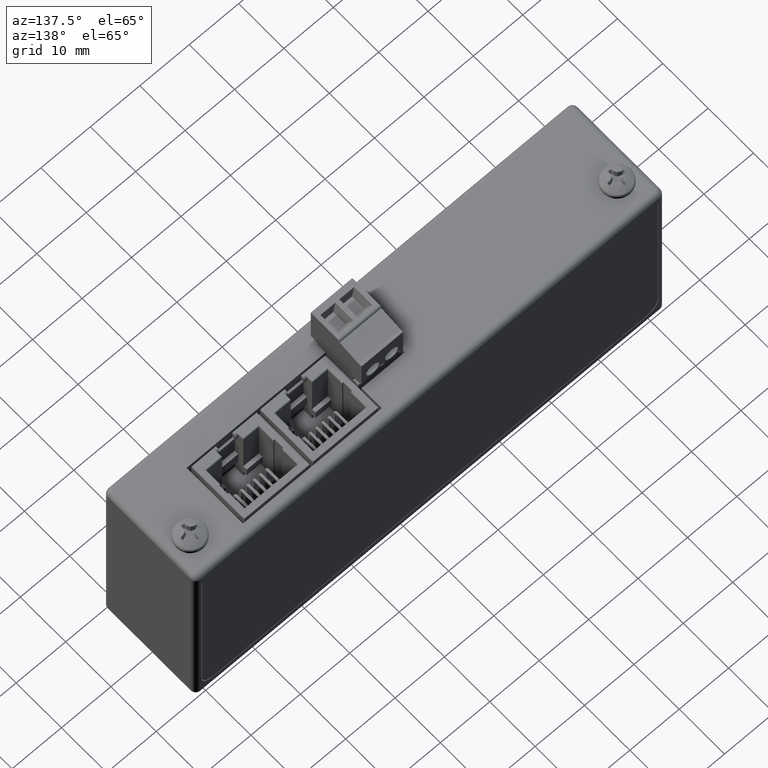
[diagram: clean part render]
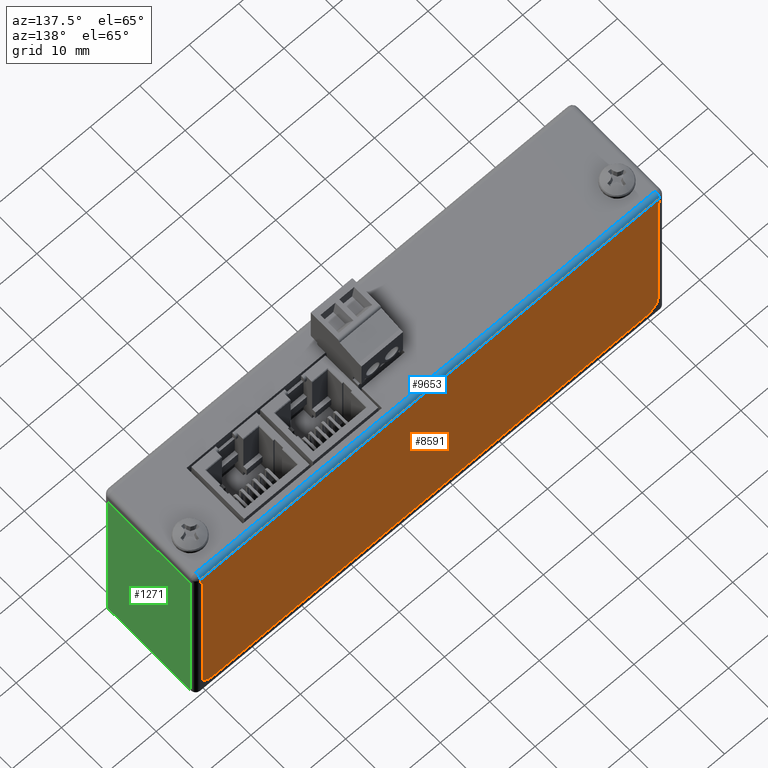
[diagram: same view with three faces highlighted in distinct colors, each labeled with its STEP entity id]
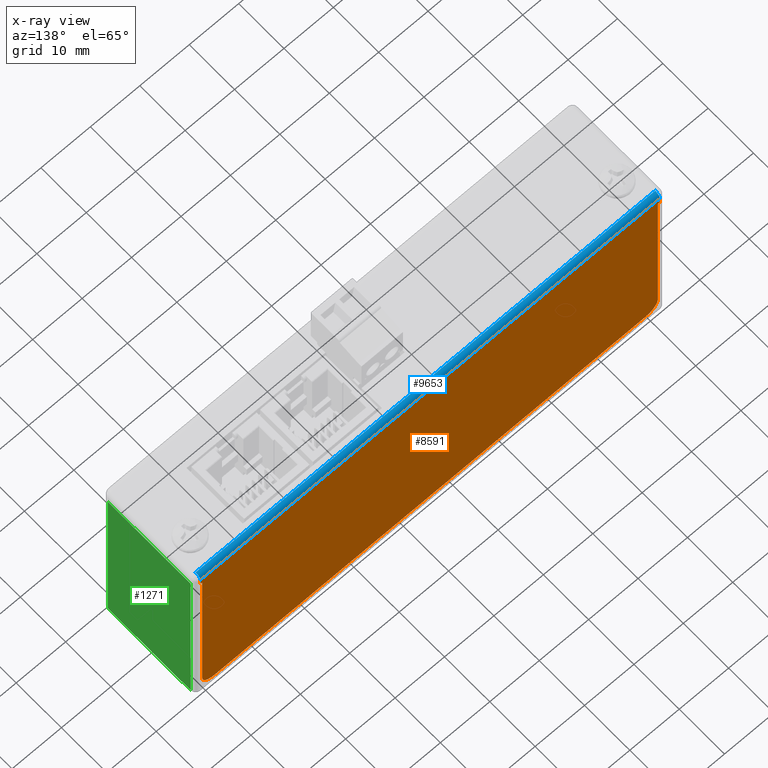
[diagram: x-ray of the same camera — body ghosted, the three highlighted faces saturated]
A machine part, auxiliary view with three faces highlighted in distinct colors.
The next image is the same camera in x-ray (body ghosted, the three faces saturated) — at least one of them is partly hidden behind the body in this view.
Their STEP definitions:

[orange] entity #8591 — the highlighted planar face has unit normal (0, -1, 0).
#43 = LINE ( 'NONE', #8129, #19098 ) ;
#1258 = VERTEX_POINT ( 'NONE', #20660 ) ;
#2328 = VERTEX_POINT ( 'NONE', #20903 ) ;
#2520 = CARTESIAN_POINT ( 'NONE',  ( 93.98399999999999466, 20.32000000000000384, 1.524000000001558330 ) ) ;
#2619 = VECTOR ( 'NONE', #11044, 1000.000000000000000 ) ;
#2620 = CARTESIAN_POINT ( 'NONE',  ( 91.06099999999999284, 20.32000000000000028, -36.19500000000000028 ) ) ;
#2829 = CARTESIAN_POINT ( 'NONE',  ( 93.60099999999998488, 20.32000000000000028, -33.65499999999999403 ) ) ;
#2969 = CARTESIAN_POINT ( 'NONE',  ( 0.000000000000000000, 20.32000000000000028, 0.000000000000000000 ) ) ;
#3634 = VERTEX_POINT ( 'NONE', #13973 ) ;
#4052 = AXIS2_PLACEMENT_3D ( 'NONE', #13132, #15212, #22915 ) ;
#4068 = LINE ( 'NONE', #15681, #7670 ) ;
#4652 = EDGE_CURVE ( 'NONE', #3634, #2328, #10802, .T. ) ;
#4802 = DIRECTION ( 'NONE',  ( 1.000000000000000000, -0.000000000000000000, 0.000000000000000000 ) ) ;
#5274 = EDGE_CURVE ( 'NONE', #7384, #23458, #10102, .T. ) ;
#5690 = CARTESIAN_POINT ( 'NONE',  ( 0.000000000000000000, 20.32000000000000028, 2.540000000000000036 ) ) ;
#5836 = VECTOR ( 'NONE', #4802, 1000.000000000000000 ) ;
#6002 = DIRECTION ( 'NONE',  ( 0.000000000000000000, -1.000000000000000000, 0.000000000000000000 ) ) ;
#6686 = EDGE_CURVE ( 'NONE', #23787, #7384, #14664, .T. ) ;
#6843 = CARTESIAN_POINT ( 'NONE',  ( 0.000000000000000000, 20.32000000000000028, 0.000000000000000000 ) ) ;
#7112 = CARTESIAN_POINT ( 'NONE',  ( 1.016000000000000014, 20.32000000000000028, 1.524000000000000687 ) ) ;
#7298 = CARTESIAN_POINT ( 'NONE',  ( 93.60099999999998488, 20.32000000000000028, 2.540000000000000036 ) ) ;
#7375 = CIRCLE ( 'NONE', #23609, 2.540000000000000480 ) ;
#7384 = VERTEX_POINT ( 'NONE', #7112 ) ;
#7490 = ORIENTED_EDGE ( 'NONE', *, *, #5274, .F. ) ;
#7670 = VECTOR ( 'NONE', #21543, 1000.000000000000000 ) ;
#7731 = DIRECTION ( 'NONE',  ( 0.000000000000000000, -0.000000000000000000, -1.000000000000000000 ) ) ;
#8008 = DIRECTION ( 'NONE',  ( 0.000000000000000000, -0.000000000000000000, -1.000000000000000000 ) ) ;
#8129 = CARTESIAN_POINT ( 'NONE',  ( 1.399000000000011346, 20.32000000000000028, 2.540000000000000036 ) ) ;
#8296 = EDGE_CURVE ( 'NONE', #21410, #3634, #9507, .T. ) ;
#8389 = ORIENTED_EDGE ( 'NONE', *, *, #15143, .F. ) ;
#8418 = CARTESIAN_POINT ( 'NONE',  ( 0.000000000000000000, 20.32000000000000028, 1.524000000000000243 ) ) ;
#8591 = ADVANCED_FACE ( 'NONE', ( #19005 ), #23557, .F. ) ;
#8935 = ORIENTED_EDGE ( 'NONE', *, *, #4652, .F. ) ;
#9269 = DIRECTION ( 'NONE',  ( -0.000000000000000000, 0.000000000000000000, 1.000000000000000000 ) ) ;
#9405 = EDGE_CURVE ( 'NONE', #23458, #14036, #24709, .T. ) ;
#9507 = LINE ( 'NONE', #7298, #9645 ) ;
#9645 = VECTOR ( 'NONE', #9269, 1000.000000000000000 ) ;
#9663 = CARTESIAN_POINT ( 'NONE',  ( 3.939000000000012047, 20.32000000000000028, -33.65499999999999403 ) ) ;
#9680 = ORIENTED_EDGE ( 'NONE', *, *, #13725, .F. ) ;
#10102 = LINE ( 'NONE', #19859, #17104 ) ;
#10402 = CARTESIAN_POINT ( 'NONE',  ( 1.399000000000011346, 20.32000000000000028, 0.000000000000000000 ) ) ;
#10802 = LINE ( 'NONE', #2969, #5836 ) ;
#11044 = DIRECTION ( 'NONE',  ( 1.000000000000000000, 0.000000000000000000, 0.000000000000000000 ) ) ;
#13035 = CARTESIAN_POINT ( 'NONE',  ( 1.399000000000011346, 20.32000000000000028, -33.65499999999999403 ) ) ;
#13132 = CARTESIAN_POINT ( 'NONE',  ( 91.06099999999999284, 20.32000000000000028, -33.65499999999999403 ) ) ;
#13263 = DIRECTION ( 'NONE',  ( 0.000000000000000000, -1.000000000000000000, 0.000000000000000000 ) ) ;
#13353 = VERTEX_POINT ( 'NONE', #13035 ) ;
#13725 = EDGE_CURVE ( 'NONE', #24219, #21410, #21124, .T. ) ;
#13861 = VECTOR ( 'NONE', #14782, 1000.000000000000000 ) ;
#13973 = CARTESIAN_POINT ( 'NONE',  ( 93.60099999999998488, 20.32000000000000028, 0.000000000000000000 ) ) ;
#14036 = VERTEX_POINT ( 'NONE', #10402 ) ;
#14664 = LINE ( 'NONE', #8418, #15015 ) ;
#14782 = DIRECTION ( 'NONE',  ( 1.000000000000000000, -0.000000000000000000, 0.000000000000000000 ) ) ;
#15015 = VECTOR ( 'NONE', #16746, 1000.000000000000000 ) ;
#15143 = EDGE_CURVE ( 'NONE', #14036, #13353, #43, .T. ) ;
#15212 = DIRECTION ( 'NONE',  ( -0.000000000000000000, -1.000000000000000000, -0.000000000000000000 ) ) ;
#15681 = CARTESIAN_POINT ( 'NONE',  ( 93.98399999999999466, 20.32000000000000028, 2.540000000000000036 ) ) ;
#15794 = ORIENTED_EDGE ( 'NONE', *, *, #6686, .F. ) ;
#15910 = AXIS2_PLACEMENT_3D ( 'NONE', #5690, #13263, #21220 ) ;
#16588 = ORIENTED_EDGE ( 'NONE', *, *, #21527, .F. ) ;
#16746 = DIRECTION ( 'NONE',  ( -1.000000000000000000, -0.000000000000000000, -0.000000000000000000 ) ) ;
#17104 = VECTOR ( 'NONE', #8008, 1000.000000000000000 ) ;
#18134 = DIRECTION ( 'NONE',  ( 0.000000000000000000, 0.000000000000000000, -1.000000000000000000 ) ) ;
#19005 = FACE_OUTER_BOUND ( 'NONE', #24065, .T. ) ;
#19098 = VECTOR ( 'NONE', #7731, 1000.000000000000000 ) ;
#19859 = CARTESIAN_POINT ( 'NONE',  ( 1.016000000000000014, 20.32000000000000028, 2.540000000000000036 ) ) ;
#20660 = CARTESIAN_POINT ( 'NONE',  ( 3.939000000000012047, 20.32000000000000028, -36.19500000000000028 ) ) ;
#20797 = ORIENTED_EDGE ( 'NONE', *, *, #8296, .F. ) ;
#20903 = CARTESIAN_POINT ( 'NONE',  ( 93.98399999999999466, 20.32000000000000028, 0.000000000000000000 ) ) ;
#21096 = ORIENTED_EDGE ( 'NONE', *, *, #25291, .F. ) ;
#21124 = CIRCLE ( 'NONE', #4052, 2.540000000000000480 ) ;
#21220 = DIRECTION ( 'NONE',  ( 0.000000000000000000, -0.000000000000000000, -1.000000000000000000 ) ) ;
#21410 = VERTEX_POINT ( 'NONE', #2829 ) ;
#21527 = EDGE_CURVE ( 'NONE', #1258, #24219, #25116, .T. ) ;
#21543 = DIRECTION ( 'NONE',  ( -0.000000000000000000, 0.000000000000000000, 1.000000000000000000 ) ) ;
#22221 = CARTESIAN_POINT ( 'NONE',  ( 1.016000000000000014, 20.32000000000000028, 0.000000000000000000 ) ) ;
#22447 = ORIENTED_EDGE ( 'NONE', *, *, #9405, .F. ) ;
#22915 = DIRECTION ( 'NONE',  ( 0.000000000000000000, 0.000000000000000000, 1.000000000000000000 ) ) ;
#23152 = CARTESIAN_POINT ( 'NONE',  ( 0.000000000000000000, 20.32000000000000028, -36.19500000000000028 ) ) ;
#23223 = EDGE_CURVE ( 'NONE', #2328, #23787, #4068, .T. ) ;
#23225 = ORIENTED_EDGE ( 'NONE', *, *, #23223, .F. ) ;
#23458 = VERTEX_POINT ( 'NONE', #22221 ) ;
#23557 = PLANE ( 'NONE',  #15910 ) ;
#23609 = AXIS2_PLACEMENT_3D ( 'NONE', #9663, #6002, #18134 ) ;
#23787 = VERTEX_POINT ( 'NONE', #2520 ) ;
#24065 = EDGE_LOOP ( 'NONE', ( #21096, #8389, #22447, #7490, #15794, #23225, #8935, #20797, #9680, #16588 ) ) ;
#24219 = VERTEX_POINT ( 'NONE', #2620 ) ;
#24709 = LINE ( 'NONE', #6843, #13861 ) ;
#25116 = LINE ( 'NONE', #23152, #2619 ) ;
#25291 = EDGE_CURVE ( 'NONE', #13353, #1258, #7375, .T. ) ;

[blue] entity #9653 — the highlighted cylindrical surface (edge-blend (fillet) strip) has radius 1.016 mm, axis along (-1, 0, 0).
#1705 = ORIENTED_EDGE ( 'NONE', *, *, #1926, .T. ) ;
#1926 = EDGE_CURVE ( 'NONE', #8709, #23787, #21110, .T. ) ;
#1932 = EDGE_CURVE ( 'NONE', #7384, #12089, #7381, .T. ) ;
#1978 = EDGE_CURVE ( 'NONE', #12089, #8709, #5061, .T. ) ;
#2177 = CARTESIAN_POINT ( 'NONE',  ( 93.98399999999999466, 19.30400000000000205, 2.540000000000000036 ) ) ;
#2520 = CARTESIAN_POINT ( 'NONE',  ( 93.98399999999999466, 20.32000000000000384, 1.524000000001558330 ) ) ;
#2729 = DIRECTION ( 'NONE',  ( -1.000000000000000000, 0.000000000000000000, 0.000000000000000000 ) ) ;
#3101 = CARTESIAN_POINT ( 'NONE',  ( 0.000000000000000000, 19.30400000000000205, 2.540000000000000036 ) ) ;
#4331 = DIRECTION ( 'NONE',  ( -1.000000000000000000, 0.000000000000000000, 0.000000000000000000 ) ) ;
#5061 = LINE ( 'NONE', #3101, #19863 ) ;
#6001 = EDGE_LOOP ( 'NONE', ( #24613, #1705, #8054, #19842 ) ) ;
#6686 = EDGE_CURVE ( 'NONE', #23787, #7384, #14664, .T. ) ;
#6784 = DIRECTION ( 'NONE',  ( 0.000000000000000000, -3.414809992080328727E-15, 1.000000000000000000 ) ) ;
#7024 = DIRECTION ( 'NONE',  ( 1.000000000000000000, -0.000000000000000000, -0.000000000000000000 ) ) ;
#7112 = CARTESIAN_POINT ( 'NONE',  ( 1.016000000000000014, 20.32000000000000028, 1.524000000000000687 ) ) ;
#7381 = CIRCLE ( 'NONE', #9880, 1.016000000000000014 ) ;
#7384 = VERTEX_POINT ( 'NONE', #7112 ) ;
#8054 = ORIENTED_EDGE ( 'NONE', *, *, #6686, .T. ) ;
#8418 = CARTESIAN_POINT ( 'NONE',  ( 0.000000000000000000, 20.32000000000000028, 1.524000000000000243 ) ) ;
#8709 = VERTEX_POINT ( 'NONE', #2177 ) ;
#9653 = ADVANCED_FACE ( 'NONE', ( #22308 ), #21912, .T. ) ;
#9880 = AXIS2_PLACEMENT_3D ( 'NONE', #10813, #18759, #6784 ) ;
#10813 = CARTESIAN_POINT ( 'NONE',  ( 1.016000000000000014, 19.30400000000000205, 1.524000000000000243 ) ) ;
#12089 = VERTEX_POINT ( 'NONE', #17120 ) ;
#12766 = CARTESIAN_POINT ( 'NONE',  ( 93.98399999999999466, 19.30400000000000205, 1.524000000000000243 ) ) ;
#14664 = LINE ( 'NONE', #8418, #15015 ) ;
#15015 = VECTOR ( 'NONE', #16746, 1000.000000000000000 ) ;
#16673 = DIRECTION ( 'NONE',  ( 0.000000000000000000, 0.000000000000000000, 1.000000000000000000 ) ) ;
#16746 = DIRECTION ( 'NONE',  ( -1.000000000000000000, -0.000000000000000000, -0.000000000000000000 ) ) ;
#17120 = CARTESIAN_POINT ( 'NONE',  ( 1.016000000000000014, 19.30400000000000205, 2.540000000000000036 ) ) ;
#18632 = AXIS2_PLACEMENT_3D ( 'NONE', #12766, #2729, #16673 ) ;
#18759 = DIRECTION ( 'NONE',  ( 1.000000000000000000, -0.000000000000000000, -0.000000000000000000 ) ) ;
#19842 = ORIENTED_EDGE ( 'NONE', *, *, #1932, .T. ) ;
#19863 = VECTOR ( 'NONE', #7024, 1000.000000000000000 ) ;
#21110 = CIRCLE ( 'NONE', #18632, 1.016000000000000014 ) ;
#21766 = AXIS2_PLACEMENT_3D ( 'NONE', #22187, #4331, #21789 ) ;
#21789 = DIRECTION ( 'NONE',  ( 0.000000000000000000, 0.000000000000000000, 1.000000000000000000 ) ) ;
#21912 = CYLINDRICAL_SURFACE ( 'NONE', #21766, 1.016000000000000014 ) ;
#22187 = CARTESIAN_POINT ( 'NONE',  ( 0.000000000000000000, 19.30400000000000205, 1.524000000000000243 ) ) ;
#22308 = FACE_OUTER_BOUND ( 'NONE', #6001, .T. ) ;
#23787 = VERTEX_POINT ( 'NONE', #2520 ) ;
#24613 = ORIENTED_EDGE ( 'NONE', *, *, #1978, .T. ) ;

[green] entity #1271 — the highlighted planar face has unit normal (1, 0, 0).
#706 = DIRECTION ( 'NONE',  ( 1.000000000000000000, -0.000000000000000000, 0.000000000000000000 ) ) ;
#771 = VERTEX_POINT ( 'NONE', #2309 ) ;
#1271 = ADVANCED_FACE ( 'NONE', ( #16618 ), #24583, .T. ) ;
#1278 = ORIENTED_EDGE ( 'NONE', *, *, #20482, .F. ) ;
#2309 = CARTESIAN_POINT ( 'NONE',  ( 95.00000000000000000, 1.016000000000000014, 0.000000000000000000 ) ) ;
#3938 = CARTESIAN_POINT ( 'NONE',  ( 95.00000000000000000, 0.000000000000000000, 0.000000000000000000 ) ) ;
#4421 = DIRECTION ( 'NONE',  ( -0.000000000000000000, -0.000000000000000000, 1.000000000000000000 ) ) ;
#4496 = DIRECTION ( 'NONE',  ( 0.000000000000000000, 0.000000000000000000, -1.000000000000000000 ) ) ;
#5038 = CARTESIAN_POINT ( 'NONE',  ( 95.00000000000000000, 19.30400000000000205, 37.59199999999999875 ) ) ;
#5314 = DIRECTION ( 'NONE',  ( -0.000000000000000000, -1.000000000000000000, -0.000000000000000000 ) ) ;
#7594 = LINE ( 'NONE', #13206, #13811 ) ;
#7995 = DIRECTION ( 'NONE',  ( -0.000000000000000000, 1.000000000000000000, 0.000000000000000000 ) ) ;
#8071 = VECTOR ( 'NONE', #4421, 1000.000000000000000 ) ;
#8527 = ORIENTED_EDGE ( 'NONE', *, *, #10174, .T. ) ;
#10174 = EDGE_CURVE ( 'NONE', #12460, #21556, #20849, .T. ) ;
#11327 = VECTOR ( 'NONE', #7995, 1000.000000000000000 ) ;
#12107 = VERTEX_POINT ( 'NONE', #25580 ) ;
#12460 = VERTEX_POINT ( 'NONE', #21853 ) ;
#13206 = CARTESIAN_POINT ( 'NONE',  ( 95.00000000000000000, 1.016000000000000014, 0.000000000000000000 ) ) ;
#13407 = LINE ( 'NONE', #21357, #14697 ) ;
#13596 = AXIS2_PLACEMENT_3D ( 'NONE', #20544, #706, #4496 ) ;
#13811 = VECTOR ( 'NONE', #19334, 1000.000000000000000 ) ;
#14697 = VECTOR ( 'NONE', #5314, 1000.000000000000000 ) ;
#16618 = FACE_OUTER_BOUND ( 'NONE', #25010, .T. ) ;
#19334 = DIRECTION ( 'NONE',  ( 0.000000000000000000, 0.000000000000000000, 1.000000000000000000 ) ) ;
#20482 = EDGE_CURVE ( 'NONE', #771, #12107, #7594, .T. ) ;
#20544 = CARTESIAN_POINT ( 'NONE',  ( 95.00000000000000000, 0.000000000000000000, 0.000000000000000000 ) ) ;
#20849 = LINE ( 'NONE', #22792, #8071 ) ;
#21167 = EDGE_CURVE ( 'NONE', #21556, #12107, #13407, .T. ) ;
#21357 = CARTESIAN_POINT ( 'NONE',  ( 95.00000000000000000, 2.540000000000000036, 37.59199999999999875 ) ) ;
#21556 = VERTEX_POINT ( 'NONE', #5038 ) ;
#21797 = LINE ( 'NONE', #3938, #11327 ) ;
#21853 = CARTESIAN_POINT ( 'NONE',  ( 95.00000000000000000, 19.30400000000000205, 0.000000000000000000 ) ) ;
#22792 = CARTESIAN_POINT ( 'NONE',  ( 95.00000000000000000, 19.30400000000000205, 0.000000000000000000 ) ) ;
#23411 = ORIENTED_EDGE ( 'NONE', *, *, #23724, .T. ) ;
#23724 = EDGE_CURVE ( 'NONE', #771, #12460, #21797, .T. ) ;
#24583 = PLANE ( 'NONE',  #13596 ) ;
#24934 = ORIENTED_EDGE ( 'NONE', *, *, #21167, .T. ) ;
#25010 = EDGE_LOOP ( 'NONE', ( #23411, #8527, #24934, #1278 ) ) ;
#25580 = CARTESIAN_POINT ( 'NONE',  ( 95.00000000000000000, 1.016000000000000014, 37.59199999999999875 ) ) ;